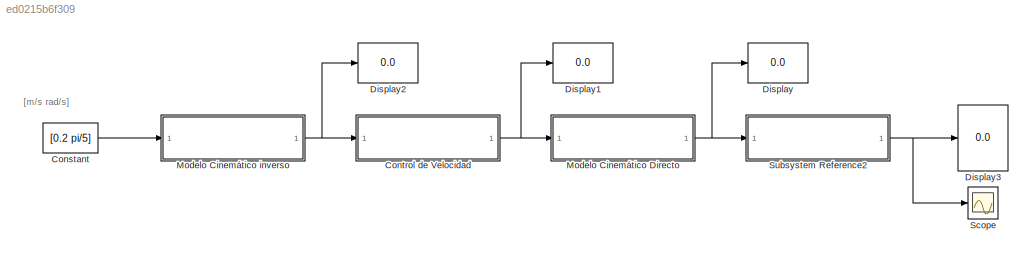
MODEL slx_ed0215b6f309
KIND model
CONFIG AbsTol = auto
CONFIG EnableMultiTasking = on
CONFIG FixedStep = auto
CONFIG MaxStep = auto
CONFIG MinStep = auto
CONFIG RelTol = 1e-3
CONFIG SampleTimeConstraint = Unconstrained
CONFIG SolverName = FixedStepAuto
CONFIG StartTime = 0.0
CONFIG StopTime = 5
WORKSPACE source: mxarray member
WORKSPACE d: Simulink.Parameter (value not decoded)
BLOCK [Constant] Constant
  Value = [0.2 pi/5]
BLOCK [SubSystem] Control de Velocidad
  ReferencedSubsystem = PieroCV
BLOCK [Display] Display
  Decimation = 1
BLOCK [Display] Display1
  Decimation = 1
BLOCK [Display] Display2
  Decimation = 1
BLOCK [Display] Display3
  Decimation = 1
BLOCK [SubSystem] Modelo Cinemático Directo
  ReferencedSubsystem = MCD
BLOCK [SubSystem] Modelo Cinemático inverso
  ReferencedSubsystem = MCI
BLOCK [Scope] Scope
  Floating = off
  NumInputPorts = 1
  ScopeSpecificationString = Simulink.scopes.TimeScopeBlockCfg('CurrentConfiguration', extmgr.ConfigurationSet(extmgr.Configuration('Core','General UI',true),extmgr.Configuration('Core','Source UI',true),extmgr.Configuration('Sources','WiredSimulink',true),extmgr.Configuration('Visuals','Time Domain',true,'SerializedDisplays',{struct('MinYLimReal','-1.12597','MaxYLimReal','6.91502','YLabelReal','','MinYLimMag','0.00000','MaxY...<+1445ch>
BLOCK [SubSystem] Subsystem Reference2
  ReferencedSubsystem = Odometria
ANNOTATION (root): [m/s rad/s]
LINE Constant:1 -> Modelo Cinemático inverso:1
NET Control de Velocidad:1 -> Display1:1, Modelo Cinemático Directo:1
NET Modelo Cinemático Directo:1 -> Display:1, Subsystem Reference2:1
NET Modelo Cinemático inverso:1 -> Control de Velocidad:1, Display2:1
NET Subsystem Reference2:1 -> Display3:1, Scope:1
note: NET lines group one-source signal fan-out (src -> all destinations, sorted); 1:1 wires keep LINE
